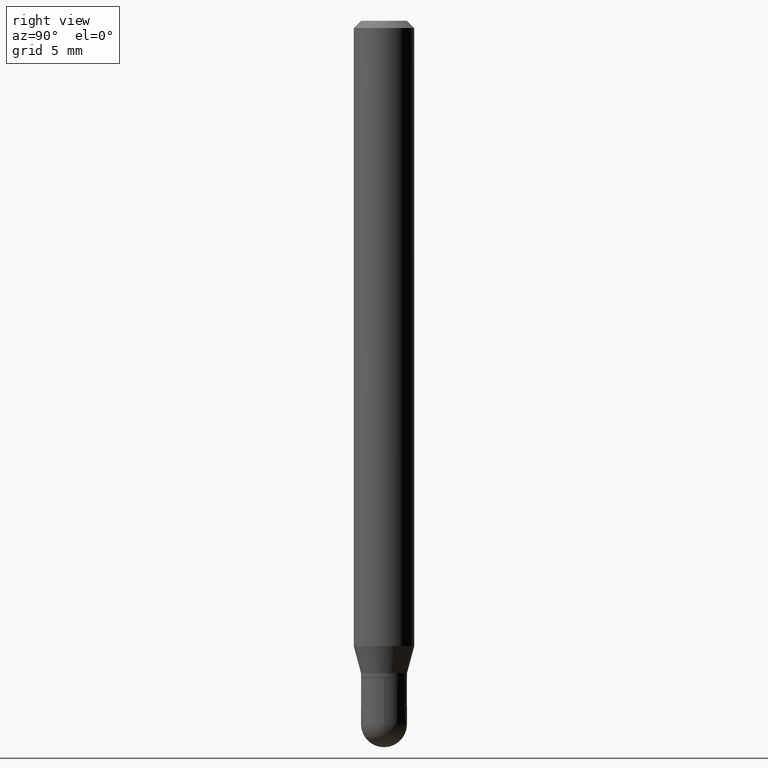
[diagram: clean part render]
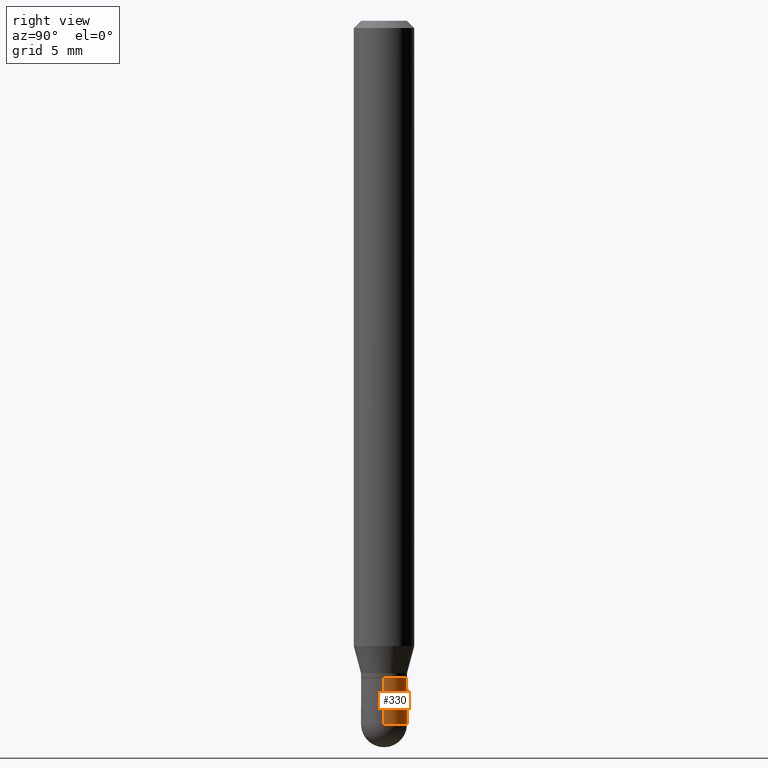
[diagram: same view with one face highlighted and labeled with its STEP entity id]
A machine part, right view. The second image highlights one B-rep face of the part: STEP entity #330.
In plain terms, the highlighted cylindrical surface (edge-blend (fillet) strip) has radius 1.2065 mm, axis along (-0, 0, 1).
Its self-contained STEP definition (entity closure, byte-faithful):
#2 = DIRECTION ( 'NONE',  ( -2.445468806185136877E-29, 3.491481338843145188E-15, 1.000000000000000000 ) ) ;
#7 = DIRECTION ( 'NONE',  ( -2.445468806185136597E-29, 3.491481338843145583E-15, 1.000000000000000000 ) ) ;
#14 = ORIENTED_EDGE ( 'NONE', *, *, #232, .F. ) ;
#25 = CARTESIAN_POINT ( 'NONE',  ( 3.552043440983912297E-29, -5.071376644669670605E-15, -1.452500000000000346 ) ) ;
#41 = EDGE_CURVE ( 'NONE', #129, #406, #214, .T. ) ;
#79 = EDGE_CURVE ( 'NONE', #281, #390, #401, .T. ) ;
#84 = ORIENTED_EDGE ( 'NONE', *, *, #336, .T. ) ;
#102 = AXIS2_PLACEMENT_3D ( 'NONE', #25, #416, #345 ) ;
#113 = VERTEX_POINT ( 'NONE', #154 ) ;
#122 = VECTOR ( 'NONE', #385, 39.37007874015748143 ) ;
#123 = ORIENTED_EDGE ( 'NONE', *, *, #313, .T. ) ;
#129 = VERTEX_POINT ( 'NONE', #410 ) ;
#139 = CARTESIAN_POINT ( 'NONE',  ( 0.000000000000000000, 0.000000000000000000, 0.000000000000000000 ) ) ;
#154 = CARTESIAN_POINT ( 'NONE',  ( -0.04750000000000000749, -4.567150611253862815E-15, -1.452500000000000346 ) ) ;
#160 = DIRECTION ( 'NONE',  ( 1.000000000000000000, -6.982962677686261977E-15, 0.000000000000000000 ) ) ;
#162 = DIRECTION ( 'NONE',  ( -2.445468806185136597E-29, 3.491481338843145583E-15, 1.000000000000000000 ) ) ;
#177 = CARTESIAN_POINT ( 'NONE',  ( 0.04750000000000000749, -5.236349137930007031E-15, -1.452500000000000346 ) ) ;
#184 = CARTESIAN_POINT ( 'NONE',  ( -0.04749999999999999362, -4.567150611253862815E-15, -1.356999999999999984 ) ) ;
#203 = EDGE_LOOP ( 'NONE', ( #84, #123, #512, #14, #362 ) ) ;
#214 = CIRCLE ( 'NONE', #383, 0.04749999999999999362 ) ;
#229 = DIRECTION ( 'NONE',  ( 1.000000000000000000, -6.982962677686260400E-15, 0.000000000000000000 ) ) ;
#232 = EDGE_CURVE ( 'NONE', #281, #129, #366, .T. ) ;
#256 = FACE_OUTER_BOUND ( 'NONE', #203, .T. ) ;
#271 = CARTESIAN_POINT ( 'NONE',  ( 0.04750000000000000749, -3.316907271900977082E-16, 2.316183968503069432E-30 ) ) ;
#281 = VERTEX_POINT ( 'NONE', #177 ) ;
#298 = DIRECTION ( 'NONE',  ( 1.000000000000000000, -6.982962677686266711E-15, 4.876176775795934672E-29 ) ) ;
#302 = LINE ( 'NONE', #498, #122 ) ;
#313 = EDGE_CURVE ( 'NONE', #113, #406, #302, .T. ) ;
#317 = CARTESIAN_POINT ( 'NONE',  ( 3.318501169993230375E-29, -4.737940176810148435E-15, -1.356999999999999984 ) ) ;
#322 = AXIS2_PLACEMENT_3D ( 'NONE', #447, #162, #229 ) ;
#330 = ADVANCED_FACE ( 'NONE', ( #256 ), #382, .T. ) ;
#336 = EDGE_CURVE ( 'NONE', #390, #113, #374, .T. ) ;
#345 = DIRECTION ( 'NONE',  ( 1.000000000000000000, -6.982962677686260400E-15, 0.000000000000000000 ) ) ;
#362 = ORIENTED_EDGE ( 'NONE', *, *, #79, .T. ) ;
#366 = LINE ( 'NONE', #271, #368 ) ;
#368 = VECTOR ( 'NONE', #2, 39.37007874015748143 ) ;
#374 = CIRCLE ( 'NONE', #102, 0.04750000000000000749 ) ;
#380 = DIRECTION ( 'NONE',  ( -2.445468806185136597E-29, 3.491481338843145583E-15, 1.000000000000000000 ) ) ;
#382 = CYLINDRICAL_SURFACE ( 'NONE', #411, 0.04750000000000000749 ) ;
#383 = AXIS2_PLACEMENT_3D ( 'NONE', #317, #7, #160 ) ;
#385 = DIRECTION ( 'NONE',  ( -2.445468806185136877E-29, 3.491481338843145188E-15, 1.000000000000000000 ) ) ;
#390 = VERTEX_POINT ( 'NONE', #464 ) ;
#401 = CIRCLE ( 'NONE', #322, 0.04750000000000000749 ) ;
#406 = VERTEX_POINT ( 'NONE', #184 ) ;
#410 = CARTESIAN_POINT ( 'NONE',  ( 0.04749999999999999362, -5.069630904000245946E-15, -1.356999999999999984 ) ) ;
#411 = AXIS2_PLACEMENT_3D ( 'NONE', #139, #380, #298 ) ;
#416 = DIRECTION ( 'NONE',  ( -2.445468806185136597E-29, 3.491481338843145583E-15, 1.000000000000000000 ) ) ;
#447 = CARTESIAN_POINT ( 'NONE',  ( 3.552043440983912297E-29, -5.071376644669670605E-15, -1.452500000000000346 ) ) ;
#464 = CARTESIAN_POINT ( 'NONE',  ( 3.316907271901330590E-16, 0.04749999999999491435, -1.452500000000000790 ) ) ;
#498 = CARTESIAN_POINT ( 'NONE',  ( -0.04750000000000000749, 3.375077994860476415E-16, -2.336494167871080260E-30 ) ) ;
#512 = ORIENTED_EDGE ( 'NONE', *, *, #41, .F. ) ;